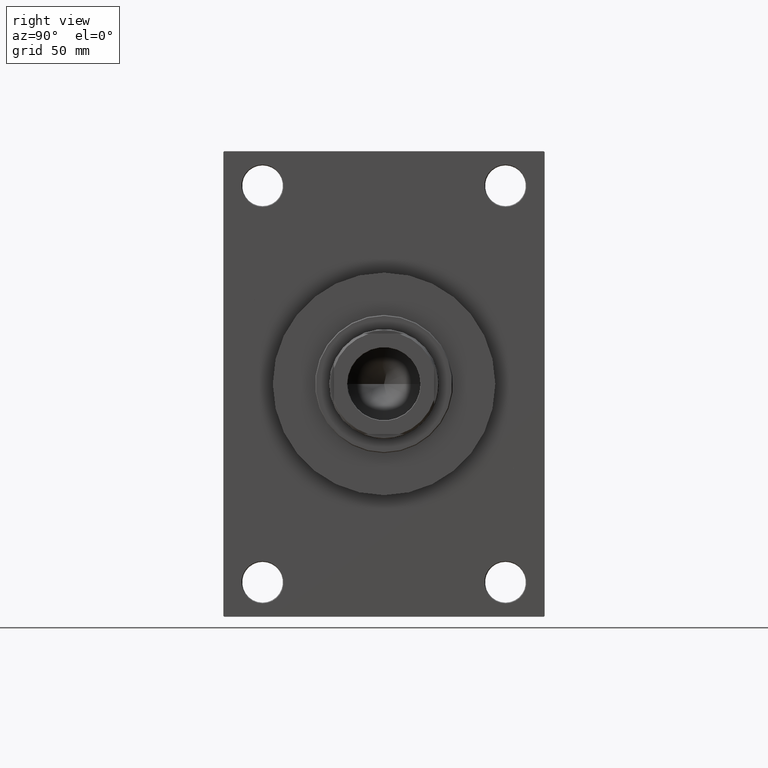
[diagram: clean part render]
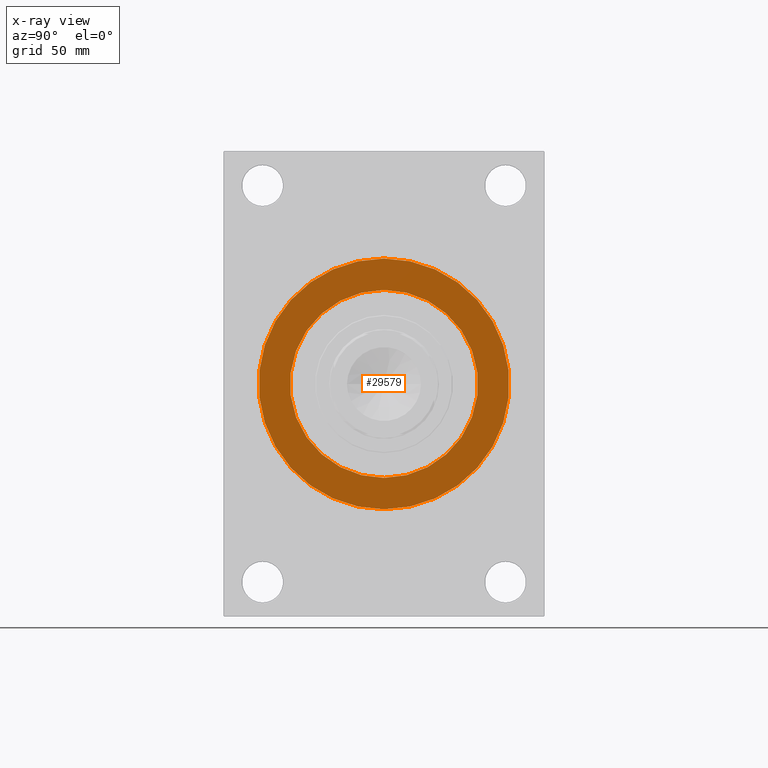
[diagram: x-ray — body ghosted, one internal face saturated and labeled with its STEP entity id]
A machine part, right view, then the same camera in x-ray: the body is ghosted and one INTERNAL B-rep face — a face not visible from any outside direction — is saturated and labeled: STEP entity #29579.
In plain terms, the highlighted planar face has unit normal (-1, 0, 0).
Its self-contained STEP definition (entity closure, byte-faithful):
#4407 = FACE_BOUND ( 'NONE', #25061, .T. ) ;
#4724 = CARTESIAN_POINT ( 'NONE',  ( 150.0000000000000000, -2.602085213965210642E-15, 80.00000000000000000 ) ) ;
#4859 = VERTEX_POINT ( 'NONE', #4724 ) ;
#5935 = CARTESIAN_POINT ( 'NONE',  ( 150.0000000000000000, 0.000000000000000000, 0.000000000000000000 ) ) ;
#6081 = AXIS2_PLACEMENT_3D ( 'NONE', #11795, #11316, #37333 ) ;
#6680 = AXIS2_PLACEMENT_3D ( 'NONE', #19125, #33589, #11889 ) ;
#8876 = CIRCLE ( 'NONE', #43530, 60.00000000000000000 ) ;
#10576 = ORIENTED_EDGE ( 'NONE', *, *, #19430, .F. ) ;
#10968 = EDGE_CURVE ( 'NONE', #12640, #15721, #42933, .T. ) ;
#11316 = DIRECTION ( 'NONE',  ( 1.000000000000000000, 0.000000000000000000, 0.000000000000000000 ) ) ;
#11795 = CARTESIAN_POINT ( 'NONE',  ( 150.0000000000000000, -2.602085213965210642E-15, 0.000000000000000000 ) ) ;
#11889 = DIRECTION ( 'NONE',  ( -0.000000000000000000, 0.000000000000000000, 1.000000000000000000 ) ) ;
#12030 = CARTESIAN_POINT ( 'NONE',  ( 150.0000000000000000, 0.000000000000000000, -60.00000000000000000 ) ) ;
#12184 = CARTESIAN_POINT ( 'NONE',  ( 150.0000000000000000, 7.195089179213615410E-15, -80.00000000000000000 ) ) ;
#12640 = VERTEX_POINT ( 'NONE', #12030 ) ;
#12707 = ORIENTED_EDGE ( 'NONE', *, *, #10968, .F. ) ;
#13151 = ORIENTED_EDGE ( 'NONE', *, *, #27060, .F. ) ;
#13993 = DIRECTION ( 'NONE',  ( 1.000000000000000000, 0.000000000000000000, 0.000000000000000000 ) ) ;
#15028 = EDGE_CURVE ( 'NONE', #44676, #4859, #16873, .T. ) ;
#15277 = PLANE ( 'NONE',  #6680 ) ;
#15721 = VERTEX_POINT ( 'NONE', #32855 ) ;
#16129 = CIRCLE ( 'NONE', #22280, 80.00000000000000000 ) ;
#16754 = ORIENTED_EDGE ( 'NONE', *, *, #15028, .F. ) ;
#16873 = CIRCLE ( 'NONE', #6081, 80.00000000000000000 ) ;
#17053 = DIRECTION ( 'NONE',  ( 0.000000000000000000, 0.000000000000000000, 1.000000000000000000 ) ) ;
#18888 = FACE_OUTER_BOUND ( 'NONE', #30326, .T. ) ;
#19125 = CARTESIAN_POINT ( 'NONE',  ( 150.0000000000000000, 0.000000000000000000, 0.000000000000000000 ) ) ;
#19430 = EDGE_CURVE ( 'NONE', #4859, #44676, #16129, .T. ) ;
#20182 = DIRECTION ( 'NONE',  ( -1.000000000000000000, -0.000000000000000000, -0.000000000000000000 ) ) ;
#21460 = CARTESIAN_POINT ( 'NONE',  ( 150.0000000000000000, -2.602085213965210642E-15, 0.000000000000000000 ) ) ;
#22280 = AXIS2_PLACEMENT_3D ( 'NONE', #21460, #13993, #43151 ) ;
#25061 = EDGE_LOOP ( 'NONE', ( #12707, #13151 ) ) ;
#27060 = EDGE_CURVE ( 'NONE', #15721, #12640, #8876, .T. ) ;
#27505 = DIRECTION ( 'NONE',  ( -1.000000000000000000, -0.000000000000000000, -0.000000000000000000 ) ) ;
#29579 = ADVANCED_FACE ( 'NONE', ( #4407, #18888 ), #15277, .T. ) ;
#30326 = EDGE_LOOP ( 'NONE', ( #10576, #16754 ) ) ;
#31367 = DIRECTION ( 'NONE',  ( 0.000000000000000000, 0.000000000000000000, 1.000000000000000000 ) ) ;
#32855 = CARTESIAN_POINT ( 'NONE',  ( 150.0000000000000000, 7.347880794884118356E-15, 60.00000000000000000 ) ) ;
#33589 = DIRECTION ( 'NONE',  ( -1.000000000000000000, 0.000000000000000000, -0.000000000000000000 ) ) ;
#35232 = AXIS2_PLACEMENT_3D ( 'NONE', #5935, #20182, #17053 ) ;
#37333 = DIRECTION ( 'NONE',  ( 0.000000000000000000, 0.000000000000000000, -1.000000000000000000 ) ) ;
#41953 = CARTESIAN_POINT ( 'NONE',  ( 150.0000000000000000, 0.000000000000000000, 0.000000000000000000 ) ) ;
#42933 = CIRCLE ( 'NONE', #35232, 60.00000000000000000 ) ;
#43151 = DIRECTION ( 'NONE',  ( 0.000000000000000000, 0.000000000000000000, -1.000000000000000000 ) ) ;
#43530 = AXIS2_PLACEMENT_3D ( 'NONE', #41953, #27505, #31367 ) ;
#44676 = VERTEX_POINT ( 'NONE', #12184 ) ;